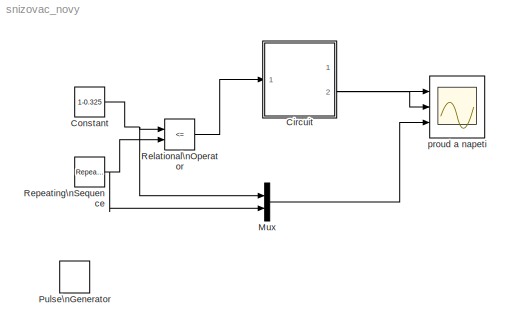
MODEL snizovac_novy
KIND model
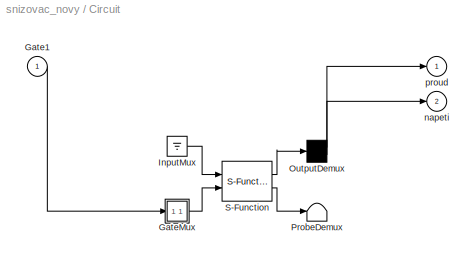
BLOCK [SubSystem] Circuit
  CopyFcn = plecsedit('sl', 203);
  DeleteFcn = plecsedit('sl', 205);
  DestroyFcn = plecsedit('sl', 207);
  ErrorFcn = plerrorfcn
  FunctionWithSeparateData = off
  InitFcn = plecsedit('sl', 214);
  LoadFcn = plecsedit('sl', 200);
  MaskDisplay = disp('PLECS\\nCircuit')\n
  MaskHideContents = off
  MaskIconFrame = on
  MaskIconOpaque = off
  MaskIconRotate = none
  MaskIconUnits = autoscale
  MaskInitialization = % PLACE CUSTOM INITIALIZATIONS ABOVE\n% DO NOT REMOVE\nplecsedit('sl', 215);\n% DO NOT REMOVE
  MaskPortRotate = default
  MaskSelfModifiable = on
  MaskType = PlecsCircuit
  MinAlgLoopOccurrences = off
  NameChangeFcn = plecsedit('sl', 210);
  Opaque = off
  OpenFcn = plecsedit('sl', 202);
  Ports = [1, 2]
  PostSaveFcn = plecsedit('sl', 201);
  PreCopyFcn = plecsedit('sl', 216);
  PreSaveFcn = plecsedit('sl', 211);
  PropExecContextOutsideSubsystem = off
  RTWSystemCode = Auto
  RequestExecContextInheritance = off
  SID = 1
  StartFcn = plecsedit('sl', 208);
  StopFcn = plecsedit('sl', 209);
  UndoDeleteFcn = plecsedit('sl', 206);
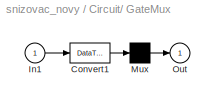
BLOCK [SubSystem] Circuit/ GateMux 
  FunctionWithSeparateData = off
  MaskDisplay = disp('Mux')
  MaskHideContents = off
  MaskIconFrame = on
  MaskIconOpaque = on
  MaskIconRotate = none
  MaskIconUnits = autoscale
  MaskPortRotate = default
  MinAlgLoopOccurrences = off
  Opaque = off
  Ports = [1, 1]
  PropExecContextOutsideSubsystem = off
  RTWSystemCode = Auto
  RequestExecContextInheritance = off
  SID = 1:31
BLOCK [DataTypeConversion] Circuit/ GateMux /Convert1
  SID = 1:35
BLOCK [Inport] Circuit/ GateMux /In1
  IconDisplay = Port number
  SID = 1:34
BLOCK [Mux] Circuit/ GateMux /Mux
  Inputs = [ 1 ]
  Ports = [1, 1]
  SID = 1:33
BLOCK [Outport] Circuit/ GateMux /Out
  IconDisplay = Port number
  SID = 1:32
BLOCK [Ground] Circuit/ InputMux 
  SID = 1:29
BLOCK [Demux] Circuit/ OutputDemux 
  Outputs = [ 1 1 ]
  Ports = [1, 2]
  SID = 1:13
BLOCK [Terminator] Circuit/ ProbeDemux 
  SID = 1:4
BLOCK [S-Function] Circuit/ S-Function 
  EnableBusSupport = off
  FunctionName = plecsedit
  Ports = [2, 2]
  SID = 1:5
BLOCK [Inport] Circuit/Gate1
  IconDisplay = Port number
  SID = 1:30
BLOCK [Outport] Circuit/napeti
  IconDisplay = Port number
  Port = 2
  SID = 1:36
BLOCK [Outport] Circuit/proud
  IconDisplay = Port number
  SID = 1:12
BLOCK [Constant] Constant
  SID = 9
  Value = 1-0.325
BLOCK [Mux] Mux
  DisplayOption = bar
  Inputs = 2
  Ports = [2, 1]
  SID = 12
BLOCK [DiscretePulseGenerator] Pulse\nGenerator
  Period = 0.005
  Ports = [0, 1]
  PulseType = Time based
  PulseWidth = 60
  SID = 7
BLOCK [RelationalOperator] Relational\nOperator
  InputSameDT = off
  Operator = <=
  OutDataTypeStr = boolean
  Ports = [2, 1]
  SID = 10
BLOCK [Reference] Repeating\nSequence  REF=simulink/Sources/Repeating\nSequence
  FunctionWithSeparateData = off
  GeneratePreprocessorConditionals = off
  Ports = [0, 1]
  RTWMemSecDataConstants = Inherit from model
  RTWMemSecDataInternal = Inherit from model
  RTWMemSecDataParameters = Inherit from model
  RTWMemSecFuncExecute = Inherit from model
  RTWMemSecFuncInitTerm = Inherit from model
  SID = 11
  ShowPortLabels = FromPortIcon
  SourceBlock = simulink/Sources/Repeating\nSequence
  SourceType = Repeating table
  SystemSampleTime = -1
  rep_seq_t = [0 0.5 1]/1000
  rep_seq_y = [0 1 0]
BLOCK [Scope] proud a napeti
  DataFormat = StructureWithTime
  Floating = off
  LimitDataPoints = off
  NumInputPorts = 3
  Ports = [3]
  SID = 2
  SampleTime = 0
  TimeRange = 0.01
  YMax = 160~200~1
  YMin = 70~0~0
  ZoomMode = xonly
LINE Circuit/ GateMux /Convert1:1 -> Circuit/ GateMux /Mux:1
LINE Circuit/ GateMux /In1:1 -> Circuit/ GateMux /Convert1:1
LINE Circuit/ GateMux /Mux:1 -> Circuit/ GateMux /Out:1
LINE Circuit/ GateMux :1 -> Circuit/ S-Function :2
LINE Circuit/ InputMux :1 -> Circuit/ S-Function :1
LINE Circuit/ OutputDemux :1 -> Circuit/proud:1
LINE Circuit/ OutputDemux :2 -> Circuit/napeti:1
LINE Circuit/ S-Function :1 -> Circuit/ OutputDemux :1
LINE Circuit/ S-Function :2 -> Circuit/ ProbeDemux :1
LINE Circuit/Gate1:1 -> Circuit/ GateMux :1
LINE Circuit:1 -> proud a napeti:1
LINE Circuit:2 -> proud a napeti:2
NET Constant:1 -> Mux:1, Relational\nOperator:1
LINE Mux:1 -> proud a napeti:3
LINE Relational\nOperator:1 -> Circuit:1
NET Repeating\nSequence:1 -> Mux:2, Relational\nOperator:2
note: NET lines group one-source signal fan-out (src -> all destinations, sorted); 1:1 wires keep LINE
